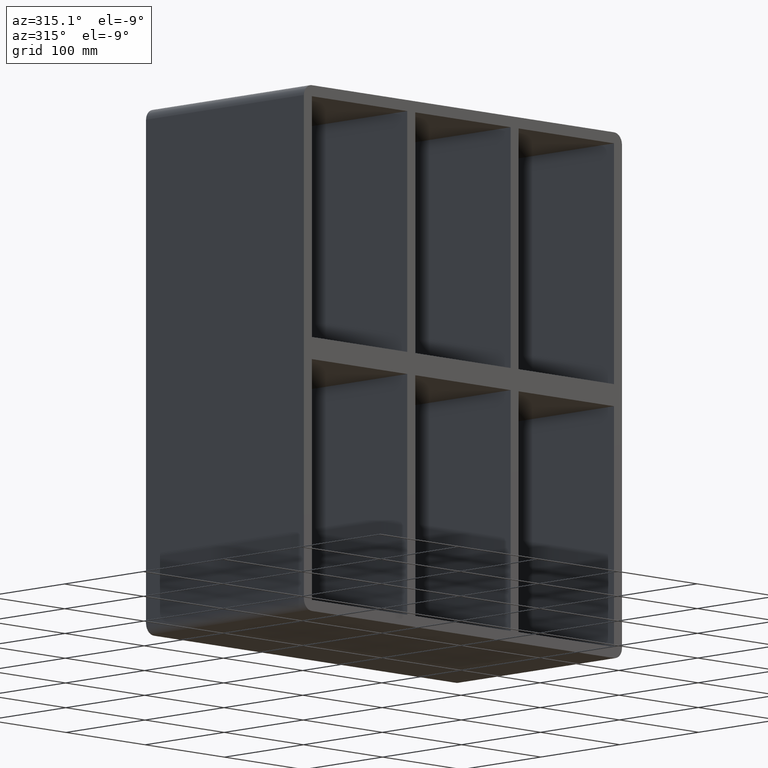
[diagram: clean part render]
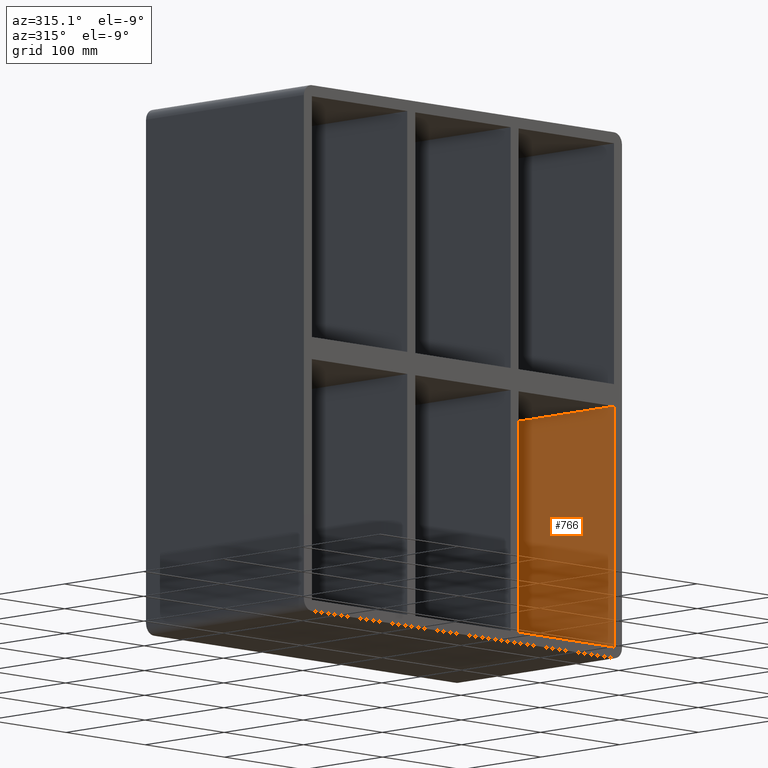
[diagram: same view with one face highlighted and labeled with its STEP entity id]
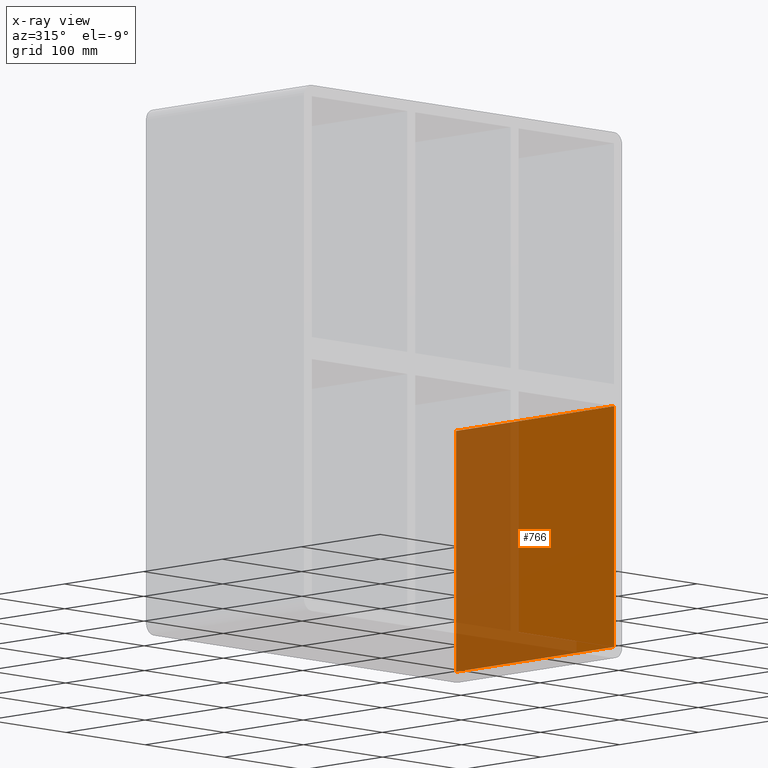
[diagram: x-ray of the same camera — body ghosted, the highlighted face saturated]
A machine part, auxiliary view. The second image highlights one B-rep face of the part: STEP entity #766.
The next image is the same camera in x-ray: the body ghosted, the highlighted face saturated — about 43% of this face is hidden behind the body in this view.
In plain terms, the highlighted planar face has unit normal (1, 0, 0).
Its self-contained STEP definition (entity closure, byte-faithful):
#265=CARTESIAN_POINT('',(190.75,-3.0,-227.99999999999994));
#266=VERTEX_POINT('',#265);
#273=CARTESIAN_POINT('',(190.75,197.0,-227.99999999999994));
#274=VERTEX_POINT('',#273);
#275=CARTESIAN_POINT('',(190.75,197.0,-227.99999999999994));
#276=DIRECTION('',(0.0,-1.0,0.0));
#277=VECTOR('',#276,200.0);
#278=LINE('',#275,#277);
#279=EDGE_CURVE('',#274,#266,#278,.T.);
#434=CARTESIAN_POINT('',(190.75000000000728,-3.0,-10.000000000017856));
#435=VERTEX_POINT('',#434);
#442=CARTESIAN_POINT('',(190.75,-3.0,-10.000000000017849));
#443=DIRECTION('',(0.0,0.0,-1.0));
#444=VECTOR('',#443,217.99999999998207);
#445=LINE('',#442,#444);
#446=EDGE_CURVE('',#435,#266,#445,.T.);
#526=CARTESIAN_POINT('',(190.75000000000728,197.0,-10.000000000017856));
#527=VERTEX_POINT('',#526);
#534=CARTESIAN_POINT('',(190.75,-3.0,-10.00000000001787));
#535=DIRECTION('',(0.0,1.0,0.0));
#536=VECTOR('',#535,199.99999999999997);
#537=LINE('',#534,#536);
#538=EDGE_CURVE('',#435,#527,#537,.T.);
#750=CARTESIAN_POINT('',(190.75,0.0,227.99999999999997));
#751=DIRECTION('',(1.0,0.0,0.0));
#752=DIRECTION('',(0.0,0.0,-1.0));
#753=AXIS2_PLACEMENT_3D('',#750,#751,#752);
#754=PLANE('',#753);
#755=ORIENTED_EDGE('',*,*,#538,.T.);
#756=CARTESIAN_POINT('',(190.75,197.0,-227.99999999999991));
#757=DIRECTION('',(0.0,0.0,1.0));
#758=VECTOR('',#757,217.99999999998207);
#759=LINE('',#756,#758);
#760=EDGE_CURVE('',#274,#527,#759,.T.);
#761=ORIENTED_EDGE('',*,*,#760,.F.);
#762=ORIENTED_EDGE('',*,*,#279,.T.);
#763=ORIENTED_EDGE('',*,*,#446,.F.);
#764=EDGE_LOOP('',(#755,#761,#762,#763));
#765=FACE_OUTER_BOUND('',#764,.T.);
#766=ADVANCED_FACE('',(#765),#754,.F.);